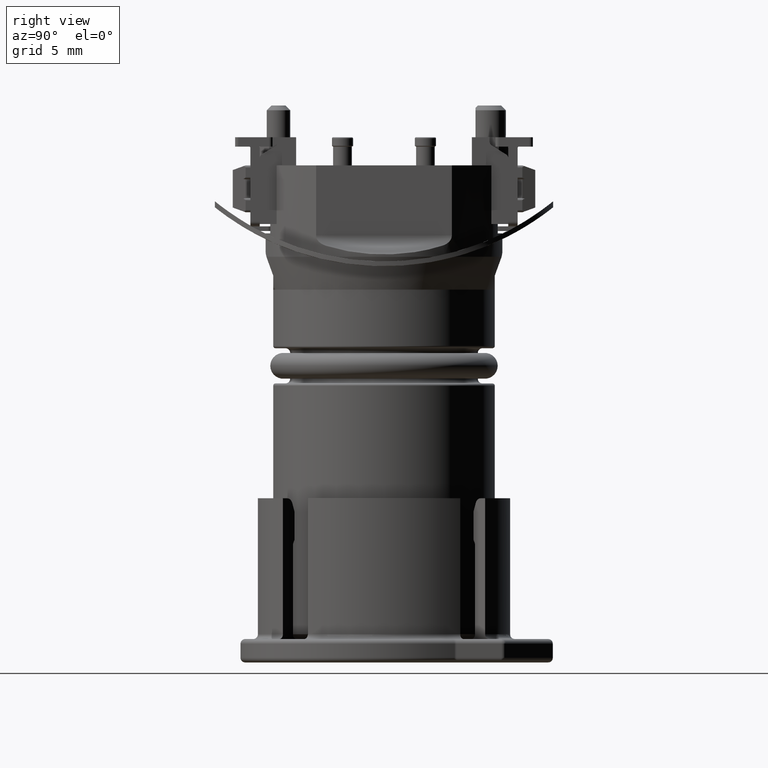
[diagram: clean part render]
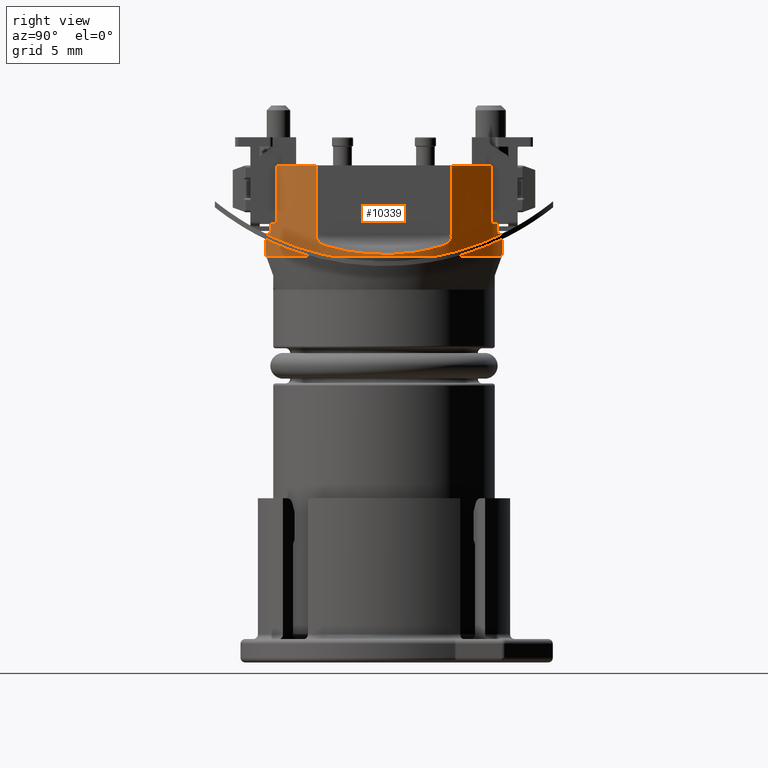
[diagram: same view with one face highlighted and labeled with its STEP entity id]
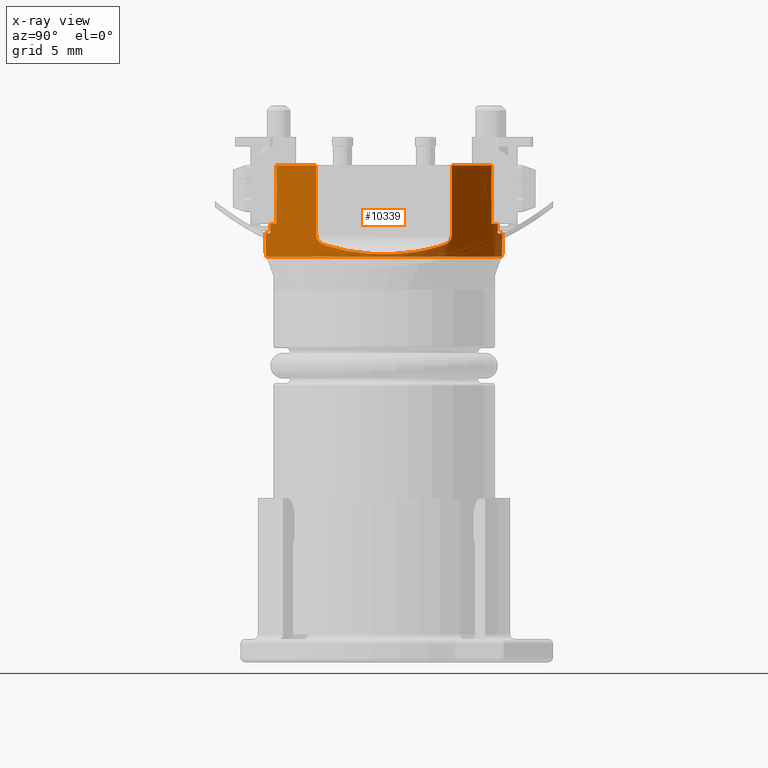
[diagram: x-ray of the same camera — body ghosted, the highlighted face saturated]
A machine part, right view. The second image highlights one B-rep face of the part: STEP entity #10339.
The next image is the same camera in x-ray: the body ghosted, the highlighted face saturated — about 1% of this face is hidden behind the body in this view.
In plain terms, the highlighted cylindrical surface (partial cylindrical patch) has radius 5.1 mm, axis along (0, 0, 1).
Its self-contained STEP definition (entity closure, byte-faithful):
#81=DIRECTION('',(0.E0,0.E0,-1.E0));
#82=VECTOR('',#81,2.991709623135E0);
#83=CARTESIAN_POINT('',(4.2E0,2.893095228298E0,-1.2E0));
#84=LINE('',#83,#82);
#89=DIRECTION('',(0.E0,0.E0,1.E0));
#90=VECTOR('',#89,2.991709623135E0);
#91=CARTESIAN_POINT('',(4.2E0,-2.893095228298E0,-4.191709623135E0));
#92=LINE('',#91,#90);
#93=CARTESIAN_POINT('',(4.45E0,-2.491485500660E0,-4.624722325027E0));
#94=CARTESIAN_POINT('',(4.682490636704E0,-2.076237917217E0,-4.758950856712E0));
#95=CARTESIAN_POINT('',(4.999785972671E0,-1.245742750330E0,-4.942141404345E0));
#96=CARTESIAN_POINT('',(5.150107013664E0,0.E0,-5.028929297827E0));
#97=CARTESIAN_POINT('',(4.999785972671E0,1.245742750330E0,-4.942141404345E0));
#98=CARTESIAN_POINT('',(4.682490636704E0,2.076237917217E0,-4.758950856712E0));
#99=CARTESIAN_POINT('',(4.45E0,2.491485500660E0,-4.624722325027E0));
#101=CARTESIAN_POINT('',(4.2E0,2.893095228298E0,-4.191709623135E0));
#102=CARTESIAN_POINT('',(4.2E0,2.893095228298E0,-4.214064916001E0));
#103=CARTESIAN_POINT('',(4.202988236030E0,2.888764381306E0,-4.259089447686E0));
#104=CARTESIAN_POINT('',(4.217030997776E0,2.868277527776E0,-4.327542624699E0));
#105=CARTESIAN_POINT('',(4.242000353558E0,2.831331476152E0,-4.397013128105E0));
#106=CARTESIAN_POINT('',(4.278789906161E0,2.775596694576E0,-4.464838074311E0));
#107=CARTESIAN_POINT('',(4.326233527396E0,2.701283940813E0,-4.526893156183E0));
#108=CARTESIAN_POINT('',(4.383337231114E0,2.607897200109E0,-4.581340120541E0));
#109=CARTESIAN_POINT('',(4.426980114399E0,2.532600927942E0,-4.611431787878E0));
#110=CARTESIAN_POINT('',(4.45E0,2.491485500660E0,-4.624722325027E0));
#112=CARTESIAN_POINT('',(0.E0,0.E0,-1.2E0));
#113=DIRECTION('',(0.E0,0.E0,1.E0));
#114=DIRECTION('',(8.235294117647E-1,5.672735741761E-1,0.E0));
#115=AXIS2_PLACEMENT_3D('',#112,#113,#114);
#117=DIRECTION('',(0.E0,0.E0,1.E0));
#118=VECTOR('',#117,2.5E0);
#119=CARTESIAN_POINT('',(2.25E0,4.576843890718E0,-3.7E0));
#120=LINE('',#119,#118);
#121=CARTESIAN_POINT('',(0.E0,0.E0,-3.7E0));
#122=DIRECTION('',(0.E0,0.E0,1.E0));
#123=DIRECTION('',(4.411764705882E-1,8.974203707290E-1,0.E0));
#124=AXIS2_PLACEMENT_3D('',#121,#122,#123);
#126=DIRECTION('',(0.E0,0.E0,1.E0));
#127=VECTOR('',#126,4.E-1);
#128=CARTESIAN_POINT('',(1.577181029559E0,4.85E0,-4.1E0));
#129=LINE('',#128,#127);
#130=CARTESIAN_POINT('',(0.E0,0.E0,-4.1E0));
#131=DIRECTION('',(0.E0,0.E0,1.E0));
#132=DIRECTION('',(3.092511822664E-1,9.509803921569E-1,0.E0));
#133=AXIS2_PLACEMENT_3D('',#130,#131,#132);
#135=DIRECTION('',(1.307464879446E-14,0.E0,1.E0));
#136=VECTOR('',#135,7.302619108071E-1);
#137=CARTESIAN_POINT('',(7.123903424388E-1,5.05E0,-4.830261910807E0));
#138=LINE('',#137,#136);
#139=CARTESIAN_POINT('',(9.383471880658E-1,5.012933727335E0,-5.1E0));
#140=CARTESIAN_POINT('',(9.187150615186E-1,5.016608571596E0,-5.086881231743E0));
#141=CARTESIAN_POINT('',(8.816073523753E-1,5.023316407875E0,-5.060876468902E0));
#142=CARTESIAN_POINT('',(8.326199578038E-1,5.031645097841E0,-5.022315265564E0));
#143=CARTESIAN_POINT('',(7.906057380489E-1,5.038396685682E0,-4.983822685551E0));
#144=CARTESIAN_POINT('',(7.562369030521E-1,5.043650708050E0,-4.945025566245E0));
#145=CARTESIAN_POINT('',(7.306457909444E-1,5.047404864225E0,-4.905817715236E0));
#146=CARTESIAN_POINT('',(7.153442190050E-1,5.049585054286E0,-4.866533711792E0));
#147=CARTESIAN_POINT('',(7.123903424388E-1,5.05E0,-4.842155424964E0));
#148=CARTESIAN_POINT('',(7.123903424388E-1,5.05E0,-4.830261910807E0));
#150=CARTESIAN_POINT('',(7.123903424387E-1,-5.05E0,-4.830261910807E0));
#151=CARTESIAN_POINT('',(7.123903424387E-1,-5.05E0,-4.842205001552E0));
#152=CARTESIAN_POINT('',(7.153726492637E-1,-5.049581053726E0,
-4.866651884135E0));
#153=CARTESIAN_POINT('',(7.306941905065E-1,-5.047397858793E0,
-4.905900646336E0));
#154=CARTESIAN_POINT('',(7.562731880272E-1,-5.043645246883E0,
-4.945070166603E0));
#155=CARTESIAN_POINT('',(7.906330375906E-1,-5.038392357009E0,
-4.983848660987E0));
#156=CARTESIAN_POINT('',(8.326213514237E-1,-5.031644787711E0,
-5.022315356164E0));
#157=CARTESIAN_POINT('',(8.815935783706E-1,-5.023318811879E0,
-5.060866303936E0));
#158=CARTESIAN_POINT('',(9.187078919158E-1,-5.016609913640E0,
-5.086876440802E0));
#159=CARTESIAN_POINT('',(9.383471880657E-1,-5.012933727335E0,-5.1E0));
#161=DIRECTION('',(1.216246399485E-14,0.E0,1.E0));
#162=VECTOR('',#161,7.302619108071E-1);
#163=CARTESIAN_POINT('',(7.123903424387E-1,-5.05E0,-4.830261910807E0));
#164=LINE('',#163,#162);
#165=CARTESIAN_POINT('',(0.E0,0.E0,-4.1E0));
#166=DIRECTION('',(0.E0,0.E0,1.E0));
#167=DIRECTION('',(1.396843808703E-1,-9.901960784314E-1,0.E0));
#168=AXIS2_PLACEMENT_3D('',#165,#166,#167);
#170=DIRECTION('',(0.E0,0.E0,1.E0));
#171=VECTOR('',#170,4.E-1);
#172=CARTESIAN_POINT('',(1.577181029559E0,-4.85E0,-4.1E0));
#173=LINE('',#172,#171);
#174=CARTESIAN_POINT('',(0.E0,0.E0,-3.7E0));
#175=DIRECTION('',(0.E0,0.E0,1.E0));
#176=DIRECTION('',(3.092511822664E-1,-9.509803921569E-1,0.E0));
#177=AXIS2_PLACEMENT_3D('',#174,#175,#176);
#179=DIRECTION('',(0.E0,0.E0,1.E0));
#180=VECTOR('',#179,2.5E0);
#181=CARTESIAN_POINT('',(2.25E0,-4.576843890718E0,-3.7E0));
#182=LINE('',#181,#180);
#183=CARTESIAN_POINT('',(0.E0,0.E0,-1.2E0));
#184=DIRECTION('',(0.E0,0.E0,1.E0));
#185=DIRECTION('',(4.411764705882E-1,-8.974203707290E-1,0.E0));
#186=AXIS2_PLACEMENT_3D('',#183,#184,#185);
#188=CARTESIAN_POINT('',(4.45E0,-2.491485500660E0,-4.624722325027E0));
#189=CARTESIAN_POINT('',(4.426980189717E0,-2.532600793417E0,-4.611431831363E0));
#190=CARTESIAN_POINT('',(4.383337336038E0,-2.607897030316E0,-4.581340218253E0));
#191=CARTESIAN_POINT('',(4.326233215702E0,-2.701284453186E0,-4.526892885868E0));
#192=CARTESIAN_POINT('',(4.278789000812E0,-2.775598098652E0,-4.464836776207E0));
#193=CARTESIAN_POINT('',(4.241999029050E0,-2.831333464876E0,-4.397010488356E0));
#194=CARTESIAN_POINT('',(4.217029481177E0,-2.868279753327E0,-4.327537310743E0));
#195=CARTESIAN_POINT('',(4.202987926677E0,-2.888764827254E0,-4.259086100924E0));
#196=CARTESIAN_POINT('',(4.2E0,-2.893095228298E0,-4.214063554995E0));
#197=CARTESIAN_POINT('',(4.2E0,-2.893095228298E0,-4.191709623135E0));
#459=CARTESIAN_POINT('',(0.E0,0.E0,-5.1E0));
#460=DIRECTION('',(0.E0,0.E0,1.E0));
#461=DIRECTION('',(1.839896447188E-1,-9.829281818303E-1,0.E0));
#462=AXIS2_PLACEMENT_3D('',#459,#460,#461);
#8128=CARTESIAN_POINT('',(2.25E0,-4.576843890718E0,-1.2E0));
#8129=VERTEX_POINT('',#8128);
#8131=CARTESIAN_POINT('',(2.25E0,4.576843890718E0,-1.2E0));
#8133=VERTEX_POINT('',#8131);
#8279=CARTESIAN_POINT('',(2.25E0,-4.576843890718E0,-3.7E0));
#8281=VERTEX_POINT('',#8279);
#8282=CARTESIAN_POINT('',(2.25E0,4.576843890718E0,-3.7E0));
#8284=VERTEX_POINT('',#8282);
#8290=CARTESIAN_POINT('',(7.123903424388E-1,-5.05E0,-4.1E0));
#8291=CARTESIAN_POINT('',(1.577181029559E0,-4.85E0,-4.1E0));
#8292=VERTEX_POINT('',#8290);
#8293=VERTEX_POINT('',#8291);
#8294=CARTESIAN_POINT('',(1.577181029559E0,-4.85E0,-3.7E0));
#8295=VERTEX_POINT('',#8294);
#8306=CARTESIAN_POINT('',(9.383471880657E-1,-5.012933727335E0,-5.1E0));
#8307=CARTESIAN_POINT('',(9.383471880658E-1,5.012933727335E0,-5.1E0));
#8308=VERTEX_POINT('',#8306);
#8309=VERTEX_POINT('',#8307);
#8314=CARTESIAN_POINT('',(1.577181029559E0,4.85E0,-3.7E0));
#8315=VERTEX_POINT('',#8314);
#8506=VERTEX_POINT('',#150);
#8507=CARTESIAN_POINT('',(1.577181029559E0,4.85E0,-4.1E0));
#8508=VERTEX_POINT('',#8507);
#8509=CARTESIAN_POINT('',(7.123903424388E-1,5.05E0,-4.1E0));
#8510=VERTEX_POINT('',#8509);
#8511=CARTESIAN_POINT('',(7.123903424388E-1,5.05E0,-4.830261910807E0));
#8512=VERTEX_POINT('',#8511);
#8996=CARTESIAN_POINT('',(4.2E0,-2.893095228298E0,-1.2E0));
#8997=CARTESIAN_POINT('',(4.2E0,2.893095228298E0,-1.2E0));
#8998=VERTEX_POINT('',#8996);
#8999=VERTEX_POINT('',#8997);
#9096=VERTEX_POINT('',#93);
#9097=VERTEX_POINT('',#99);
#9098=VERTEX_POINT('',#197);
#9099=VERTEX_POINT('',#101);
#10296=CARTESIAN_POINT('',(0.E0,0.E0,-2.247E1));
#10297=DIRECTION('',(0.E0,0.E0,1.E0));
#10298=DIRECTION('',(0.E0,1.E0,0.E0));
#10299=AXIS2_PLACEMENT_3D('',#10296,#10297,#10298);
#10300=CYLINDRICAL_SURFACE('',#10299,5.1E0);
#10302=ORIENTED_EDGE('',*,*,#10301,.T.);
#10304=ORIENTED_EDGE('',*,*,#10303,.F.);
#10305=ORIENTED_EDGE('',*,*,#10286,.F.);
#10306=ORIENTED_EDGE('',*,*,#10252,.T.);
#10308=ORIENTED_EDGE('',*,*,#10307,.F.);
#10310=ORIENTED_EDGE('',*,*,#10309,.T.);
#10312=ORIENTED_EDGE('',*,*,#10311,.F.);
#10314=ORIENTED_EDGE('',*,*,#10313,.T.);
#10316=ORIENTED_EDGE('',*,*,#10315,.F.);
#10318=ORIENTED_EDGE('',*,*,#10317,.F.);
#10320=ORIENTED_EDGE('',*,*,#10319,.F.);
#10322=ORIENTED_EDGE('',*,*,#10321,.F.);
#10324=ORIENTED_EDGE('',*,*,#10323,.T.);
#10326=ORIENTED_EDGE('',*,*,#10325,.T.);
#10328=ORIENTED_EDGE('',*,*,#10327,.T.);
#10330=ORIENTED_EDGE('',*,*,#10329,.T.);
#10332=ORIENTED_EDGE('',*,*,#10331,.T.);
#10333=ORIENTED_EDGE('',*,*,#10236,.T.);
#10334=ORIENTED_EDGE('',*,*,#10290,.F.);
#10336=ORIENTED_EDGE('',*,*,#10335,.F.);
#10337=EDGE_LOOP('',(#10302,#10304,#10305,#10306,#10308,#10310,#10312,#10314,
#10316,#10318,#10320,#10322,#10324,#10326,#10328,#10330,#10332,#10333,#10334,
#10336));
#10338=FACE_OUTER_BOUND('',#10337,.F.);
#100=B_SPLINE_CURVE_WITH_KNOTS('',3,(#93,#94,#95,#96,#97,#98,#99),.UNSPECIFIED.,
.F.,.F.,(4,1,1,1,4),(0.E0,2.5E-1,5.E-1,7.5E-1,1.E0),.UNSPECIFIED.);
#111=B_SPLINE_CURVE_WITH_KNOTS('',3,(#101,#102,#103,#104,#105,#106,#107,#108,
#109,#110),.UNSPECIFIED.,.F.,.F.,(4,1,1,1,1,1,1,4),(0.E0,1.428571428571E-1,
2.857142857143E-1,4.285714285714E-1,5.714285714286E-1,7.142857142857E-1,
8.571428571429E-1,1.E0),.UNSPECIFIED.);
#116=CIRCLE('',#115,5.1E0);
#125=CIRCLE('',#124,5.1E0);
#134=CIRCLE('',#133,5.1E0);
#149=B_SPLINE_CURVE_WITH_KNOTS('',3,(#139,#140,#141,#142,#143,#144,#145,#146,
#147,#148),.UNSPECIFIED.,.F.,.F.,(4,1,1,1,1,1,1,4),(0.E0,1.428571428571E-1,
2.857142857143E-1,4.285714285714E-1,5.714285714286E-1,7.142857142857E-1,
8.571428571429E-1,1.E0),.UNSPECIFIED.);
#160=B_SPLINE_CURVE_WITH_KNOTS('',3,(#150,#151,#152,#153,#154,#155,#156,#157,
#158,#159),.UNSPECIFIED.,.F.,.F.,(4,1,1,1,1,1,1,4),(0.E0,1.428571428571E-1,
2.857142857143E-1,4.285714285714E-1,5.714285714286E-1,7.142857142857E-1,
8.571428571429E-1,1.E0),.UNSPECIFIED.);
#169=CIRCLE('',#168,5.1E0);
#178=CIRCLE('',#177,5.1E0);
#187=CIRCLE('',#186,5.1E0);
#198=B_SPLINE_CURVE_WITH_KNOTS('',3,(#188,#189,#190,#191,#192,#193,#194,#195,
#196,#197),.UNSPECIFIED.,.F.,.F.,(4,1,1,1,1,1,1,4),(0.E0,1.428571428571E-1,
2.857142857143E-1,4.285714285714E-1,5.714285714286E-1,7.142857142857E-1,
8.571428571429E-1,1.E0),.UNSPECIFIED.);
#463=CIRCLE('',#462,5.1E0);
#10236=EDGE_CURVE('',#8129,#8998,#187,.T.);
#10252=EDGE_CURVE('',#8999,#8133,#116,.T.);
#10286=EDGE_CURVE('',#8999,#9099,#84,.T.);
#10290=EDGE_CURVE('',#9098,#8998,#92,.T.);
#10301=EDGE_CURVE('',#9096,#9097,#100,.T.);
#10303=EDGE_CURVE('',#9099,#9097,#111,.T.);
#10307=EDGE_CURVE('',#8284,#8133,#120,.T.);
#10309=EDGE_CURVE('',#8284,#8315,#125,.T.);
#10311=EDGE_CURVE('',#8508,#8315,#129,.T.);
#10313=EDGE_CURVE('',#8508,#8510,#134,.T.);
#10315=EDGE_CURVE('',#8512,#8510,#138,.T.);
#10317=EDGE_CURVE('',#8309,#8512,#149,.T.);
#10319=EDGE_CURVE('',#8308,#8309,#463,.T.);
#10321=EDGE_CURVE('',#8506,#8308,#160,.T.);
#10323=EDGE_CURVE('',#8506,#8292,#164,.T.);
#10325=EDGE_CURVE('',#8292,#8293,#169,.T.);
#10327=EDGE_CURVE('',#8293,#8295,#173,.T.);
#10329=EDGE_CURVE('',#8295,#8281,#178,.T.);
#10331=EDGE_CURVE('',#8281,#8129,#182,.T.);
#10335=EDGE_CURVE('',#9096,#9098,#198,.T.);
#10339=ADVANCED_FACE('',(#10338),#10300,.T.);